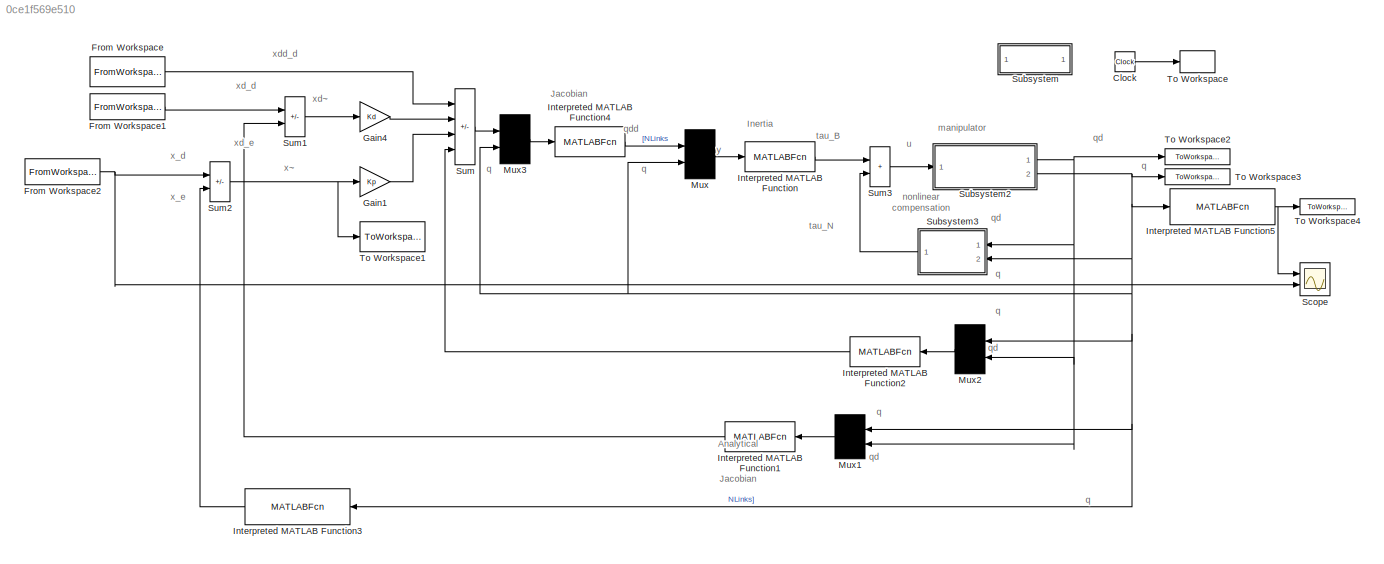
MODEL slx_0ce1f569e510
KIND model
CONFIG AbsTol = auto
CONFIG EnableMultiTasking = off
CONFIG FixedStep = auto
CONFIG MaxStep = auto
CONFIG MinStep = auto
CONFIG RelTol = 1e-3
CONFIG SampleTimeConstraint = Unconstrained
CONFIG Solver = VariableStepAuto
CONFIG SolverName = VariableStepAuto
CONFIG StartTime = 0.0
CONFIG StopTime = T(end)
BLOCK [Clock] Clock
BLOCK [FromWorkspace] From Workspace
  SampleTime = T_step
  VariableName = [T,xdd_d]
BLOCK [FromWorkspace] From Workspace1
  SampleTime = T_step
  VariableName = [T,xd_d]
BLOCK [FromWorkspace] From Workspace2
  SampleTime = T_step
  VariableName = [T,x_d]
BLOCK [Gain] Gain1
  Gain = Kp
  Multiplication = Matrix(u*K)
  SampleTime = T_step
BLOCK [Gain] Gain4
  Gain = Kd
  Multiplication = Matrix(u*K)
  SampleTime = T_step
BLOCK [MATLABFcn] Interpreted MATLAB Function
  MATLABFcn = Bddq(u)
  OutputDimensions = NLinks
  Ports = [1, 1]
BLOCK [MATLABFcn] Interpreted MATLAB Function1
  MATLABFcn = Jadq(u)
  NameLocation = top
  OutputDimensions = 3
  Ports = [1, 1]
BLOCK [MATLABFcn] Interpreted MATLAB Function2
  MATLABFcn = dJacobA(u)
  NameLocation = top
  OutputDimensions = 3
  Ports = [1, 1]
BLOCK [MATLABFcn] Interpreted MATLAB Function3
  MATLABFcn = fwdkin(u)
  NameLocation = top
  OutputDimensions = 3
  Ports = [1, 1]
BLOCK [MATLABFcn] Interpreted MATLAB Function4
  MATLABFcn = Ja_inv(u)
  OutputDimensions = NLinks
  Ports = [1, 1]
BLOCK [MATLABFcn] Interpreted MATLAB Function5
  MATLABFcn = fwdkin(u)
  OutputDimensions = 3
  Ports = [1, 1]
BLOCK [Mux] Mux
  Inputs = [NLinks,NLinks]
  Ports = [2, 1]
BLOCK [Mux] Mux1
  Inputs = [NLinks,NLinks]
  NameLocation = top
  Ports = [2, 1]
BLOCK [Mux] Mux2
  Inputs = [NLinks,NLinks]
  NameLocation = top
  Ports = [2, 1]
BLOCK [Mux] Mux3
  Inputs = [3,NLinks]
  Ports = [2, 1]
BLOCK [Scope] Scope
  Floating = off
  NumInputPorts = 2
  Ports = [2]
  ScopeSpecificationString = Simulink.scopes.TimeScopeBlockCfg('CurrentConfiguration', extmgr.ConfigurationSet(extmgr.Configuration('Core','General UI',true),extmgr.Configuration('Core','Source UI',true),extmgr.Configuration('Sources','WiredSimulink',true),extmgr.Configuration('Visuals','Time Domain',true,'SerializedDisplays',{struct('MinYLimReal','-0.7625','MaxYLimReal','0.8625','YLabelReal','','MinYLimMag','0.00000','MaxYLi...<+1500ch>
BLOCK [SubSystem] Subsystem
  Ports = []
  RequestExecContextInheritance = off
  StopFcn = SimPlots
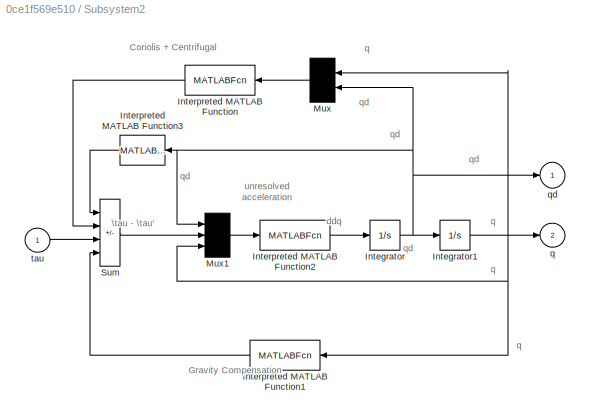
BLOCK [SubSystem] Subsystem2
  Ports = [1, 2]
  RequestExecContextInheritance = off
BLOCK [Integrator] Subsystem2/Integrator
  Ports = [1, 1]
BLOCK [Integrator] Subsystem2/Integrator1
  InitialCondition = q0
  Ports = [1, 1]
BLOCK [MATLABFcn] Subsystem2/Interpreted MATLAB Function
  MATLABFcn = C_q(u)
  NameLocation = top
  Output1D = off
  OutputDimensions = NLinks
  Ports = [1, 1]
BLOCK [MATLABFcn] Subsystem2/Interpreted MATLAB Function1
  MATLABFcn = G_q(u)
  NameLocation = top
  OutputDimensions = NLinks
  Ports = [1, 1]
BLOCK [MATLABFcn] Subsystem2/Interpreted MATLAB Function2
  MATLABFcn = B_accel(u)
  OutputDimensions = NLinks
  Ports = [1, 1]
BLOCK [MATLABFcn] Subsystem2/Interpreted MATLAB Function3
  MATLABFcn = Fv_dq(u)
  NameLocation = top
  OutputDimensions = NLinks
  Ports = [1, 1]
BLOCK [Mux] Subsystem2/Mux
  Inputs = [NLinks,NLinks]
  NameLocation = top
  Ports = [2, 1]
BLOCK [Mux] Subsystem2/Mux1
  Inputs = [NLinks,NLinks,NLinks]
  Ports = [3, 1]
BLOCK [Sum] Subsystem2/Sum
  IconShape = rectangular
  Inputs = --+-
  Ports = [4, 1]
BLOCK [Outport] Subsystem2/q
  Port = 2
BLOCK [Outport] Subsystem2/qd
BLOCK [Inport] Subsystem2/tau
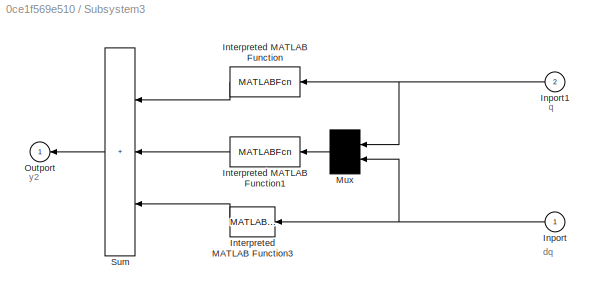
BLOCK [SubSystem] Subsystem3
  NameLocation = top
  Ports = [2, 1]
  RequestExecContextInheritance = off
BLOCK [Inport] Subsystem3/Inport
  NameLocation = top
BLOCK [Inport] Subsystem3/Inport1
  NameLocation = top
  Port = 2
BLOCK [MATLABFcn] Subsystem3/Interpreted MATLAB Function
  MATLABFcn = G_q(u)
  NameLocation = top
  OutputDimensions = NLinks
  Ports = [1, 1]
BLOCK [MATLABFcn] Subsystem3/Interpreted MATLAB Function1
  MATLABFcn = C_q(u)
  NameLocation = top
  OutputDimensions = NLinks
  Ports = [1, 1]
BLOCK [MATLABFcn] Subsystem3/Interpreted MATLAB Function3
  MATLABFcn = Fv_dq(u)
  NameLocation = top
  OutputDimensions = NLinks
  Ports = [1, 1]
BLOCK [Mux] Subsystem3/Mux
  Inputs = 2
  NameLocation = top
  Ports = [2, 1]
BLOCK [Outport] Subsystem3/Outport
  NameLocation = top
BLOCK [Sum] Subsystem3/Sum
  IconShape = rectangular
  Inputs = +++
  NameLocation = top
  Ports = [3, 1]
BLOCK [Sum] Sum
  IconShape = rectangular
  Inputs = +++-
  Ports = [4, 1]
BLOCK [Sum] Sum1
  IconShape = rectangular
  Inputs = +-
  Ports = [2, 1]
BLOCK [Sum] Sum2
  IconShape = rectangular
  Inputs = +-
  Ports = [2, 1]
BLOCK [Sum] Sum3
  IconShape = rectangular
  Ports = [2, 1]
BLOCK [ToWorkspace] To Workspace
  FixptAsFi = on
  MaxDataPoints = inf
  Ports = [1]
  SampleTime = -1
  VariableName = time
BLOCK [ToWorkspace] To Workspace1
  MaxDataPoints = inf
  Ports = [1]
  SampleTime = T_step
  VariableName = error
BLOCK [ToWorkspace] To Workspace2
  FixptAsFi = on
  MaxDataPoints = inf
  Ports = [1]
  SampleTime = T_step
  VariableName = dq_out
BLOCK [ToWorkspace] To Workspace3
  FixptAsFi = on
  MaxDataPoints = inf
  Ports = [1]
  SampleTime = T_step
  VariableName = q_out
BLOCK [ToWorkspace] To Workspace4
  FixptAsFi = on
  MaxDataPoints = inf
  Ports = [1]
  SampleTime = T_step
  VariableName = x_out
ANNOTATION (root): Analytical Jacobian
ANNOTATION (root): Inertia
ANNOTATION (root): Inverse Jacobian
ANNOTATION (root): manipulator
ANNOTATION (root): nonlinear compensation
ANNOTATION (root): q
ANNOTATION (root): qd
ANNOTATION (root): qdd
ANNOTATION (root): tau_B
ANNOTATION (root): tau_N
ANNOTATION (root): u
ANNOTATION (root): x_d
ANNOTATION (root): x_e
ANNOTATION (root): xd_d
ANNOTATION (root): xd_e
ANNOTATION (root): xdd_d
ANNOTATION (root): xd~
ANNOTATION (root): x~
ANNOTATION (root): y
ANNOTATION Subsystem2: Coriolis + Centrifugal
ANNOTATION Subsystem2: Gravity Compensation
ANNOTATION Subsystem2: \tau - \tau'
ANNOTATION Subsystem2: ddq
ANNOTATION Subsystem2: q
ANNOTATION Subsystem2: qd
ANNOTATION Subsystem2: unresolved acceleration
ANNOTATION Subsystem3: dq
ANNOTATION Subsystem3: q
ANNOTATION Subsystem3: y2
LINE Clock:1 -> To Workspace:1
LINE From Workspace1:1 -> Sum1:1
NET From Workspace2:1 -> Scope:2, Sum2:1
LINE From Workspace:1 -> Sum:1
LINE Gain1:1 -> Sum:3
LINE Gain4:1 -> Sum:2
LINE Interpreted MATLAB Function1:1 -> Sum1:2
LINE Interpreted MATLAB Function2:1 -> Sum:4
LINE Interpreted MATLAB Function3:1 -> Sum2:2
LINE Interpreted MATLAB Function4:1 -> Mux:1
NET Interpreted MATLAB Function5:1 -> Scope:1, To Workspace4:1
LINE Interpreted MATLAB Function:1 -> Sum3:1
LINE Mux1:1 -> Interpreted MATLAB Function1:1
LINE Mux2:1 -> Interpreted MATLAB Function2:1
LINE Mux3:1 -> Interpreted MATLAB Function4:1
LINE Mux:1 -> Interpreted MATLAB Function:1
NET Subsystem2/Integrator1:1 -> Subsystem2/Interpreted MATLAB Function1:1, Subsystem2/Mux1:3, Subsystem2/Mux:1, Subsystem2/q:1
NET Subsystem2/Integrator:1 -> Subsystem2/Integrator1:1, Subsystem2/Interpreted MATLAB Function3:1, Subsystem2/Mux1:1, Subsystem2/Mux:2, Subsystem2/qd:1
LINE Subsystem2/Interpreted MATLAB Function1:1 -> Subsystem2/Sum:4
LINE Subsystem2/Interpreted MATLAB Function2:1 -> Subsystem2/Integrator:1
LINE Subsystem2/Interpreted MATLAB Function3:1 -> Subsystem2/Sum:1
LINE Subsystem2/Interpreted MATLAB Function:1 -> Subsystem2/Sum:2
LINE Subsystem2/Mux1:1 -> Subsystem2/Interpreted MATLAB Function2:1
LINE Subsystem2/Mux:1 -> Subsystem2/Interpreted MATLAB Function:1
LINE Subsystem2/Sum:1 -> Subsystem2/Mux1:2
LINE Subsystem2/tau:1 -> Subsystem2/Sum:3
NET Subsystem2:1 -> Mux1:2, Mux2:2, Subsystem3:1, To Workspace2:1
NET Subsystem2:2 -> Interpreted MATLAB Function3:1, Interpreted MATLAB Function5:1, Mux1:1, Mux2:1, Mux3:2, Mux:2, Subsystem3:2, To Workspace3:1
NET Subsystem3/Inport1:1 -> Subsystem3/Interpreted MATLAB Function:1, Subsystem3/Mux:1
NET Subsystem3/Inport:1 -> Subsystem3/Interpreted MATLAB Function3:1, Subsystem3/Mux:2
LINE Subsystem3/Interpreted MATLAB Function1:1 -> Subsystem3/Sum:2
LINE Subsystem3/Interpreted MATLAB Function3:1 -> Subsystem3/Sum:3
LINE Subsystem3/Interpreted MATLAB Function:1 -> Subsystem3/Sum:1
LINE Subsystem3/Mux:1 -> Subsystem3/Interpreted MATLAB Function1:1
LINE Subsystem3/Sum:1 -> Subsystem3/Outport:1
LINE Subsystem3:1 -> Sum3:2
LINE Sum1:1 -> Gain4:1
NET Sum2:1 -> Gain1:1, To Workspace1:1
LINE Sum3:1 -> Subsystem2:1
LINE Sum:1 -> Mux3:1
note: NET lines group one-source signal fan-out (src -> all destinations, sorted); 1:1 wires keep LINE
